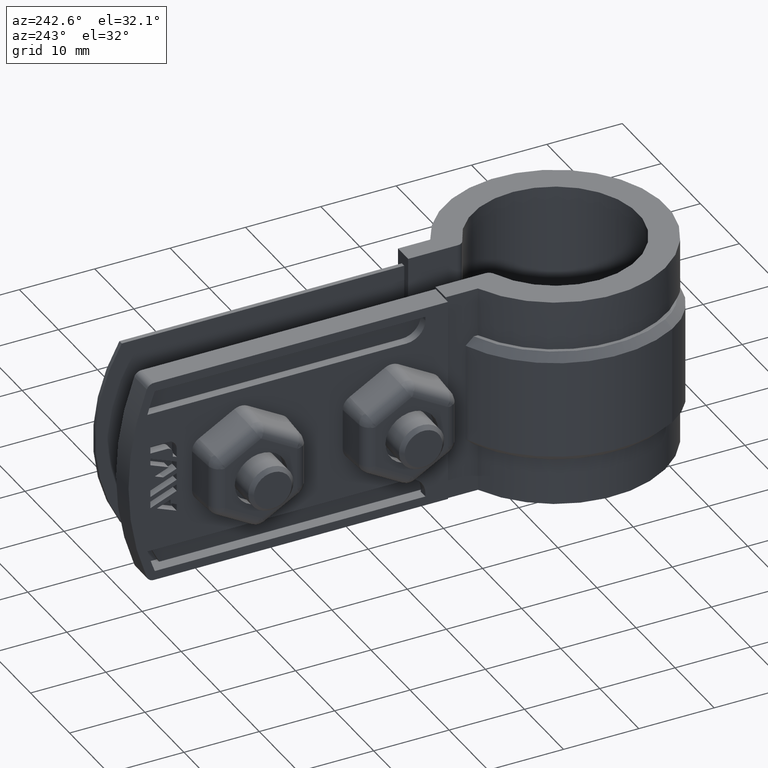
[diagram: clean part render]
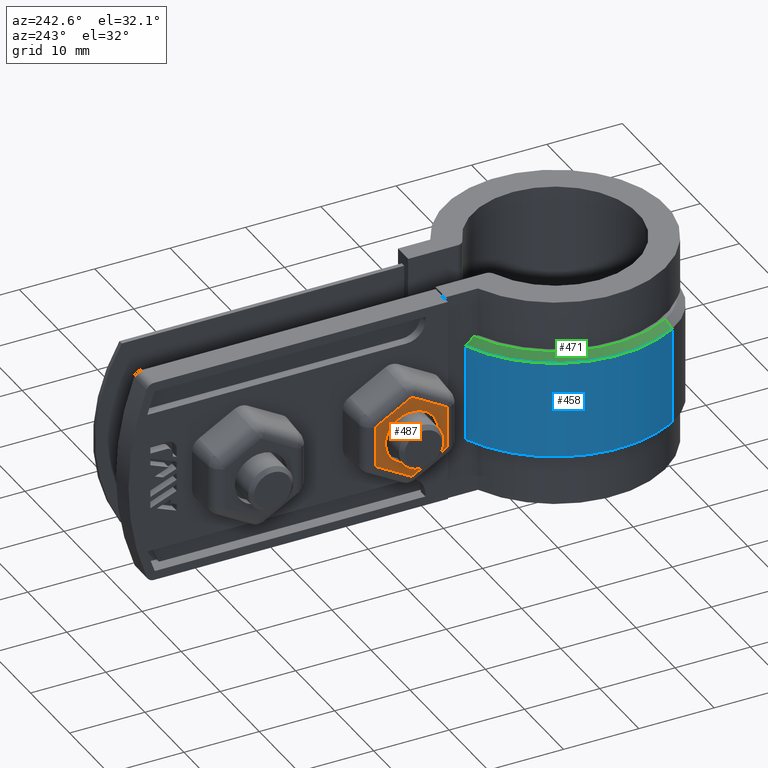
[diagram: same view with three faces highlighted in distinct colors, each labeled with its STEP entity id]
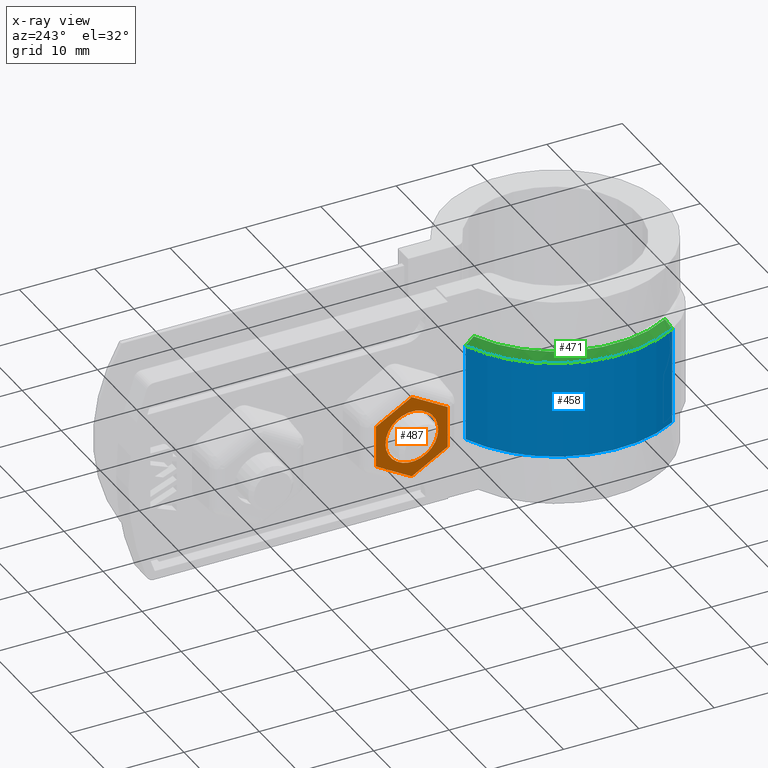
[diagram: x-ray of the same camera — body ghosted, the three highlighted faces saturated]
A machine part, auxiliary view with three faces highlighted in distinct colors.
The next image is the same camera in x-ray (body ghosted, the three faces saturated) — at least one of them is partly hidden behind the body in this view.
Their STEP definitions:

[orange] entity #487 — the highlighted planar face has unit normal (-1, 0, 0).
#487 = ADVANCED_FACE( '', ( #981, #982 ), #983, .T. );
#981 = FACE_OUTER_BOUND( '', #2093, .T. );
#982 = FACE_BOUND( '', #2094, .T. );
#983 = PLANE( '', #2095 );
#2093 = EDGE_LOOP( '', ( #4997, #4998, #4999, #5000, #5001, #5002, #5003, #5004, #5005, #5006, #5007, #5008 ) );
#2094 = EDGE_LOOP( '', ( #5009 ) );
#2095 = AXIS2_PLACEMENT_3D( '', #5010, #5011, #5012 );
#4997 = ORIENTED_EDGE( '', *, *, #7072, .T. );
#4998 = ORIENTED_EDGE( '', *, *, #7073, .T. );
#4999 = ORIENTED_EDGE( '', *, *, #7074, .T. );
#5000 = ORIENTED_EDGE( '', *, *, #7075, .T. );
#5001 = ORIENTED_EDGE( '', *, *, #7076, .T. );
#5002 = ORIENTED_EDGE( '', *, *, #7077, .T. );
#5003 = ORIENTED_EDGE( '', *, *, #7078, .T. );
#5004 = ORIENTED_EDGE( '', *, *, #7079, .T. );
#5005 = ORIENTED_EDGE( '', *, *, #7080, .T. );
#5006 = ORIENTED_EDGE( '', *, *, #7081, .T. );
#5007 = ORIENTED_EDGE( '', *, *, #7082, .T. );
#5008 = ORIENTED_EDGE( '', *, *, #7083, .T. );
#5009 = ORIENTED_EDGE( '', *, *, #7084, .T. );
#5010 = CARTESIAN_POINT( '', ( -11.9000000000000, 29.8997530837310, -15.2135462651900 ) );
#5011 = DIRECTION( '', ( -1.00000000000000, 5.66188006743699E-017, 4.64857589325121E-017 ) );
#5012 = DIRECTION( '', ( -1.19484478125700E-017, 0.499999999999999, -0.866025403784439 ) );
#7072 = EDGE_CURVE( '', #8425, #8426, #8427, .T. );
#7073 = EDGE_CURVE( '', #8426, #8428, #8429, .F. );
#7074 = EDGE_CURVE( '', #8428, #8430, #8431, .T. );
#7075 = EDGE_CURVE( '', #8430, #8432, #8433, .F. );
#7076 = EDGE_CURVE( '', #8432, #8434, #8435, .T. );
#7077 = EDGE_CURVE( '', #8434, #8436, #8437, .F. );
#7078 = EDGE_CURVE( '', #8436, #8438, #8439, .T. );
#7079 = EDGE_CURVE( '', #8438, #8440, #8441, .F. );
#7080 = EDGE_CURVE( '', #8440, #8442, #8443, .T. );
#7081 = EDGE_CURVE( '', #8442, #8444, #8445, .F. );
#7082 = EDGE_CURVE( '', #8444, #8446, #8447, .T. );
#7083 = EDGE_CURVE( '', #8446, #8425, #8448, .F. );
#7084 = EDGE_CURVE( '', #8449, #8449, #8450, .F. );
#8425 = VERTEX_POINT( '', #11588 );
#8426 = VERTEX_POINT( '', #11589 );
#8427 = CIRCLE( '', #11590, 0.0765531499276736 );
#8428 = VERTEX_POINT( '', #11591 );
#8429 = LINE( '', #11592, #11593 );
#8430 = VERTEX_POINT( '', #11594 );
#8431 = CIRCLE( '', #11595, 0.0765531499276817 );
#8432 = VERTEX_POINT( '', #11596 );
#8433 = LINE( '', #11597, #11598 );
#8434 = VERTEX_POINT( '', #11599 );
#8435 = CIRCLE( '', #11600, 0.0765531499276782 );
#8436 = VERTEX_POINT( '', #11601 );
#8437 = LINE( '', #11602, #11603 );
#8438 = VERTEX_POINT( '', #11604 );
#8439 = CIRCLE( '', #11605, 0.0765531499276785 );
#8440 = VERTEX_POINT( '', #11606 );
#8441 = LINE( '', #11607, #11608 );
#8442 = VERTEX_POINT( '', #11609 );
#8443 = CIRCLE( '', #11610, 0.0765531499276785 );
#8444 = VERTEX_POINT( '', #11611 );
#8445 = LINE( '', #11612, #11613 );
#8446 = VERTEX_POINT( '', #11614 );
#8447 = CIRCLE( '', #11615, 0.0765531499276852 );
#8448 = LINE( '', #11616, #11617 );
#8449 = VERTEX_POINT( '', #11618 );
#8450 = CIRCLE( '', #11619, 3.50000000000000 );
#11588 = CARTESIAN_POINT( '', ( -11.9000000000000, 25.2380296586948, -17.9933895029583 ) );
#11589 = CARTESIAN_POINT( '', ( -11.9000000000000, 25.1614765087672, -17.9933895029583 ) );
#11590 = AXIS2_PLACEMENT_3D( '', #13150, #13151, #13152 );
#11591 = CARTESIAN_POINT( '', ( -11.9000000000000, 20.4614765087671, -15.2798432377671 ) );
#11592 = CARTESIAN_POINT( '', ( -11.9000000000000, 27.5114765087671, -19.3501626355539 ) );
#11593 = VECTOR( '', #13153, 1000.00000000000 );
#11594 = CARTESIAN_POINT( '', ( -11.9000000000000, 20.4231999338033, -15.2135462651900 ) );
#11595 = AXIS2_PLACEMENT_3D( '', #13154, #13155, #13156 );
#11596 = CARTESIAN_POINT( '', ( -11.9000000000000, 20.4231999338033, -9.78645373480748 ) );
#11597 = CARTESIAN_POINT( '', ( -11.9000000000000, 20.4231999338033, -15.2135462651900 ) );
#11598 = VECTOR( '', #13157, 1000.00000000000 );
#11599 = CARTESIAN_POINT( '', ( -11.9000000000000, 20.4614765087671, -9.72015676223040 ) );
#11600 = AXIS2_PLACEMENT_3D( '', #13158, #13159, #13160 );
#11601 = CARTESIAN_POINT( '', ( -11.9000000000000, 25.1614765087671, -7.00661049703916 ) );
#11602 = CARTESIAN_POINT( '', ( -11.9000000000000, 25.1614765087671, -7.00661049703916 ) );
#11603 = VECTOR( '', #13161, 1000.00000000000 );
#11604 = CARTESIAN_POINT( '', ( -11.9000000000000, 25.2380296586948, -7.00661049703916 ) );
#11605 = AXIS2_PLACEMENT_3D( '', #13162, #13163, #13164 );
#11606 = CARTESIAN_POINT( '', ( -11.9000000000000, 29.9380296586948, -9.72015676223040 ) );
#11607 = CARTESIAN_POINT( '', ( -11.9000000000000, 32.2880296586948, -11.0769298948260 ) );
#11608 = VECTOR( '', #13165, 1000.00000000000 );
#11609 = CARTESIAN_POINT( '', ( -11.9000000000000, 29.9763062336587, -9.78645373480749 ) );
#11610 = AXIS2_PLACEMENT_3D( '', #13166, #13167, #13168 );
#11611 = CARTESIAN_POINT( '', ( -11.9000000000000, 29.9763062336587, -15.2135462651900 ) );
#11612 = CARTESIAN_POINT( '', ( -11.9000000000000, 29.9763062336587, -15.2135462651900 ) );
#11613 = VECTOR( '', #13169, 1000.00000000000 );
#11614 = CARTESIAN_POINT( '', ( -11.9000000000000, 29.9380296586948, -15.2798432377671 ) );
#11615 = AXIS2_PLACEMENT_3D( '', #13170, #13171, #13172 );
#11616 = CARTESIAN_POINT( '', ( -11.9000000000000, 29.9380296586948, -15.2798432377671 ) );
#11617 = VECTOR( '', #13173, 1000.00000000000 );
#11618 = CARTESIAN_POINT( '', ( -11.9000000000000, 21.6997530837310, -12.4999999999987 ) );
#11619 = AXIS2_PLACEMENT_3D( '', #13174, #13175, #13176 );
#13150 = CARTESIAN_POINT( '', ( -11.9000000000000, 25.1997530837310, -17.9270925303812 ) );
#13151 = DIRECTION( '', ( -1.00000000000000, 5.66188006743699E-017, 4.64857589325121E-017 ) );
#13152 = DIRECTION( '', ( -5.66188006743699E-017, -1.00000000000000, 0.000000000000000 ) );
#13153 = DIRECTION( '', ( 2.57904402495558E-017, 0.866025403784439, -0.499999999999999 ) );
#13154 = CARTESIAN_POINT( '', ( -11.9000000000000, 20.4997530837310, -15.2135462651900 ) );
#13155 = DIRECTION( '', ( -1.00000000000000, 5.66188006743699E-017, 4.64857589325121E-017 ) );
#13156 = DIRECTION( '', ( -5.66188006743699E-017, -1.00000000000000, 0.000000000000000 ) );
#13157 = DIRECTION( '', ( -4.64857589325121E-017, 5.58192921134509E-017, -1.00000000000000 ) );
#13158 = CARTESIAN_POINT( '', ( -11.9000000000000, 20.4997530837310, -9.78645373480748 ) );
#13159 = DIRECTION( '', ( -1.00000000000000, 5.66188006743699E-017, 4.64857589325121E-017 ) );
#13160 = DIRECTION( '', ( -5.66188006743699E-017, -1.00000000000000, 0.000000000000000 ) );
#13161 = DIRECTION( '', ( -7.22761991820679E-017, -0.866025403784439, -0.500000000000000 ) );
#13162 = CARTESIAN_POINT( '', ( -11.9000000000000, 25.1997530837310, -7.07290746961625 ) );
#13163 = DIRECTION( '', ( -1.00000000000000, 5.66188006743699E-017, 4.64857589325121E-017 ) );
#13164 = DIRECTION( '', ( -5.66188006743699E-017, -1.00000000000000, 0.000000000000000 ) );
#13165 = DIRECTION( '', ( -2.57904402495558E-017, -0.866025403784439, 0.500000000000000 ) );
#13166 = CARTESIAN_POINT( '', ( -11.9000000000000, 29.8997530837310, -9.78645373480749 ) );
#13167 = DIRECTION( '', ( -1.00000000000000, 5.66188006743699E-017, 4.64857589325121E-017 ) );
#13168 = DIRECTION( '', ( -5.66188006743699E-017, -1.00000000000000, 0.000000000000000 ) );
#13169 = DIRECTION( '', ( 4.64857589325121E-017, -5.54803371430385E-016, 1.00000000000000 ) );
#13170 = CARTESIAN_POINT( '', ( -11.9000000000000, 29.8997530837310, -15.2135462651900 ) );
#13171 = DIRECTION( '', ( -1.00000000000000, 5.66188006743699E-017, 4.64857589325121E-017 ) );
#13172 = DIRECTION( '', ( -5.66188006743699E-017, -1.00000000000000, 0.000000000000000 ) );
#13173 = DIRECTION( '', ( 7.22761991820679E-017, 0.866025403784439, 0.500000000000000 ) );
#13174 = CARTESIAN_POINT( '', ( -11.9000000000000, 25.1997530837310, -12.4999999999987 ) );
#13175 = DIRECTION( '', ( -1.00000000000000, 5.66188006743699E-017, 4.64857589325121E-017 ) );
#13176 = DIRECTION( '', ( -5.66188006743699E-017, -1.00000000000000, 0.000000000000000 ) );

[blue] entity #458 — the highlighted cylindrical surface (partial cylindrical patch) has radius 16.245 mm, axis along (0, 0, -1).
#458 = ADVANCED_FACE( '', ( #905 ), #906, .T. );
#905 = FACE_OUTER_BOUND( '', #2017, .T. );
#906 = CYLINDRICAL_SURFACE( '', #2018, 16.2450000000000 );
#2017 = EDGE_LOOP( '', ( #4583, #4584, #4585, #4586 ) );
#2018 = AXIS2_PLACEMENT_3D( '', #4587, #4588, #4589 );
#4583 = ORIENTED_EDGE( '', *, *, #6666, .F. );
#4584 = ORIENTED_EDGE( '', *, *, #6837, .T. );
#4585 = ORIENTED_EDGE( '', *, *, #6834, .T. );
#4586 = ORIENTED_EDGE( '', *, *, #6838, .T. );
#4587 = CARTESIAN_POINT( '', ( 2.60208521396521E-015, -5.20417042793042E-015, -20.0000000000000 ) );
#4588 = DIRECTION( '', ( 0.000000000000000, 0.000000000000000, -1.00000000000000 ) );
#4589 = DIRECTION( '', ( -0.313942751615882, 0.949441914341182, 0.000000000000000 ) );
#6666 = EDGE_CURVE( '', #7684, #7686, #7687, .T. );
#6834 = EDGE_CURVE( '', #7968, #7969, #7970, .T. );
#6837 = EDGE_CURVE( '', #7684, #7968, #7973, .T. );
#6838 = EDGE_CURVE( '', #7969, #7686, #7974, .F. );
#7684 = VERTEX_POINT( '', #9909 );
#7686 = VERTEX_POINT( '', #9914 );
#7687 = LINE( '', #9915, #9916 );
#7968 = VERTEX_POINT( '', #10937 );
#7969 = VERTEX_POINT( '', #10938 );
#7970 = LINE( '', #10939, #10940 );
#7973 = CIRCLE( '', #10943, 16.2450000000000 );
#7974 = CIRCLE( '', #10944, 16.2450000000000 );
#9909 = CARTESIAN_POINT( '', ( -6.10000000000000, 15.0562287774861, -19.0000000000000 ) );
#9914 = CARTESIAN_POINT( '', ( -6.10000000000000, 15.0562287774861, -5.99999999999999 ) );
#9915 = CARTESIAN_POINT( '', ( -6.10000000000000, 15.0562287774861, -20.0000000000000 ) );
#9916 = VECTOR( '', #12629, 1000.00000000000 );
#10937 = CARTESIAN_POINT( '', ( -13.9717411521907, -8.28797165633305, -19.0000000000000 ) );
#10938 = CARTESIAN_POINT( '', ( -13.9717411521907, -8.28797165633305, -5.99999999999999 ) );
#10939 = CARTESIAN_POINT( '', ( -13.9717411521907, -8.28797165633305, -20.0000000000000 ) );
#10940 = VECTOR( '', #12824, 1000.00000000000 );
#10943 = AXIS2_PLACEMENT_3D( '', #12831, #12832, #12833 );
#10944 = AXIS2_PLACEMENT_3D( '', #12834, #12835, #12836 );
#12629 = DIRECTION( '', ( 0.000000000000000, 0.000000000000000, 1.00000000000000 ) );
#12824 = DIRECTION( '', ( 0.000000000000000, 0.000000000000000, 1.00000000000000 ) );
#12831 = CARTESIAN_POINT( '', ( 2.60208521396521E-015, -5.20417042793042E-015, -19.0000000000000 ) );
#12832 = DIRECTION( '', ( 0.000000000000000, 0.000000000000000, 1.00000000000000 ) );
#12833 = DIRECTION( '', ( 1.00000000000000, 0.000000000000000, 0.000000000000000 ) );
#12834 = CARTESIAN_POINT( '', ( 2.60208521396521E-015, -5.20417042793042E-015, -6.00000000000000 ) );
#12835 = DIRECTION( '', ( 0.000000000000000, 0.000000000000000, 1.00000000000000 ) );
#12836 = DIRECTION( '', ( 1.00000000000000, 0.000000000000000, 0.000000000000000 ) );

[green] entity #471 — the highlighted conical surface has half-angle 45 deg.
#471 = ADVANCED_FACE( '', ( #932 ), #933, .T. );
#932 = FACE_OUTER_BOUND( '', #2044, .T. );
#933 = CONICAL_SURFACE( '', #2045, 15.2450000000000, 0.785398163397449 );
#2044 = EDGE_LOOP( '', ( #4690, #4691, #4692, #4693 ) );
#2045 = AXIS2_PLACEMENT_3D( '', #4694, #4695, #4696 );
#4690 = ORIENTED_EDGE( '', *, *, #6667, .F. );
#4691 = ORIENTED_EDGE( '', *, *, #6838, .F. );
#4692 = ORIENTED_EDGE( '', *, *, #6853, .F. );
#4693 = ORIENTED_EDGE( '', *, *, #6830, .F. );
#4694 = CARTESIAN_POINT( '', ( 2.60208521396521E-015, -5.20417042793042E-015, -5.00000000000000 ) );
#4695 = DIRECTION( '', ( 0.000000000000000, 0.000000000000000, -1.00000000000000 ) );
#4696 = DIRECTION( '', ( -1.00000000000000, 0.000000000000000, 0.000000000000000 ) );
#6667 = EDGE_CURVE( '', #7686, #7688, #7689, .T. );
#6830 = EDGE_CURVE( '', #7688, #7962, #7963, .T. );
#6838 = EDGE_CURVE( '', #7969, #7686, #7974, .F. );
#6853 = EDGE_CURVE( '', #7962, #7969, #7995, .T. );
#7686 = VERTEX_POINT( '', #9914 );
#7688 = VERTEX_POINT( '', #9917 );
#7689 = B_SPLINE_CURVE_WITH_KNOTS( '', 3, ( #9918, #9919, #9920, #9921 ), .UNSPECIFIED., .F., .F., ( 4, 4 ), ( 2.45326946669340E-018, 0.00147541618868421 ), .UNSPECIFIED. );
#7962 = VERTEX_POINT( '', #10931 );
#7963 = CIRCLE( '', #10932, 15.2450000000000 );
#7969 = VERTEX_POINT( '', #10938 );
#7974 = CIRCLE( '', #10944, 16.2450000000000 );
#7995 = LINE( '', #10976, #10977 );
#9914 = CARTESIAN_POINT( '', ( -6.10000000000000, 15.0562287774861, -5.99999999999999 ) );
#9917 = CARTESIAN_POINT( '', ( -6.10000000000000, 13.9714002519432, -5.00000000000000 ) );
#9918 = CARTESIAN_POINT( '', ( -6.09999999999999, 15.0562287774861, -6.00000000000000 ) );
#9919 = CARTESIAN_POINT( '', ( -6.09999999999999, 14.6955225524098, -5.66568941543787 ) );
#9920 = CARTESIAN_POINT( '', ( -6.10000000000000, 14.3339743426226, -5.33228387942706 ) );
#9921 = CARTESIAN_POINT( '', ( -6.10000000000000, 13.9714002519432, -5.00000000000000 ) );
#10931 = CARTESIAN_POINT( '', ( -13.1116770615665, -7.77778565101861, -5.00000000000000 ) );
#10932 = AXIS2_PLACEMENT_3D( '', #12812, #12813, #12814 );
#10938 = CARTESIAN_POINT( '', ( -13.9717411521907, -8.28797165633305, -5.99999999999999 ) );
#10944 = AXIS2_PLACEMENT_3D( '', #12834, #12835, #12836 );
#10976 = CARTESIAN_POINT( '', ( -13.1116770615665, -7.77778565101861, -5.00000000000000 ) );
#10977 = VECTOR( '', #12857, 1000.00000000000 );
#12812 = CARTESIAN_POINT( '', ( 2.60208521396521E-015, -5.20417042793042E-015, -5.00000000000000 ) );
#12813 = DIRECTION( '', ( 0.000000000000000, 0.000000000000000, 1.00000000000000 ) );
#12814 = DIRECTION( '', ( 1.00000000000000, 0.000000000000000, 0.000000000000000 ) );
#12834 = CARTESIAN_POINT( '', ( 2.60208521396521E-015, -5.20417042793042E-015, -6.00000000000000 ) );
#12835 = DIRECTION( '', ( 0.000000000000000, 0.000000000000000, 1.00000000000000 ) );
#12836 = DIRECTION( '', ( 1.00000000000000, 0.000000000000000, 0.000000000000000 ) );
#12857 = DIRECTION( '', ( -0.608157150735440, -0.360755984024315, -0.707106781186547 ) );